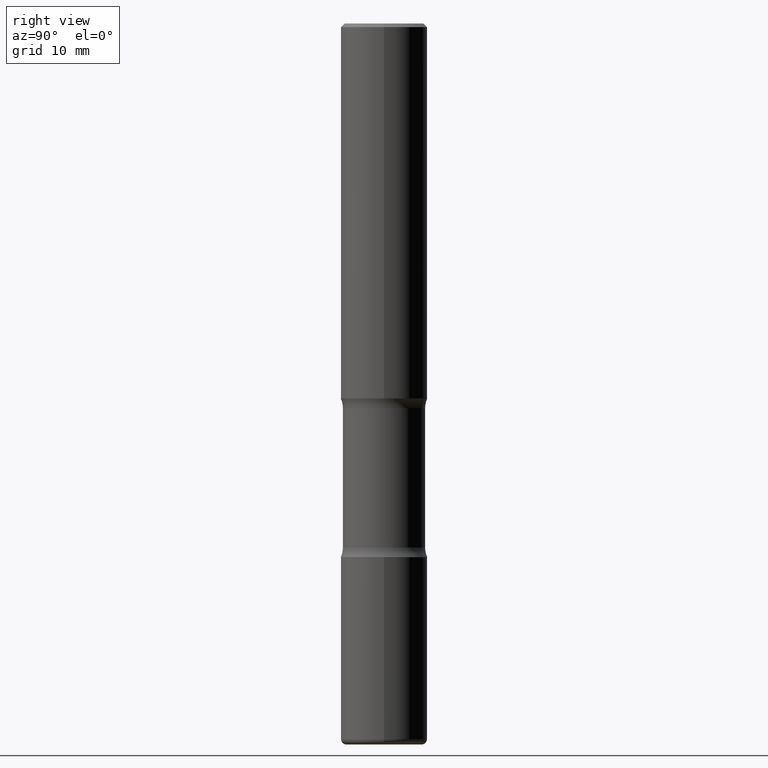
[diagram: clean part render]
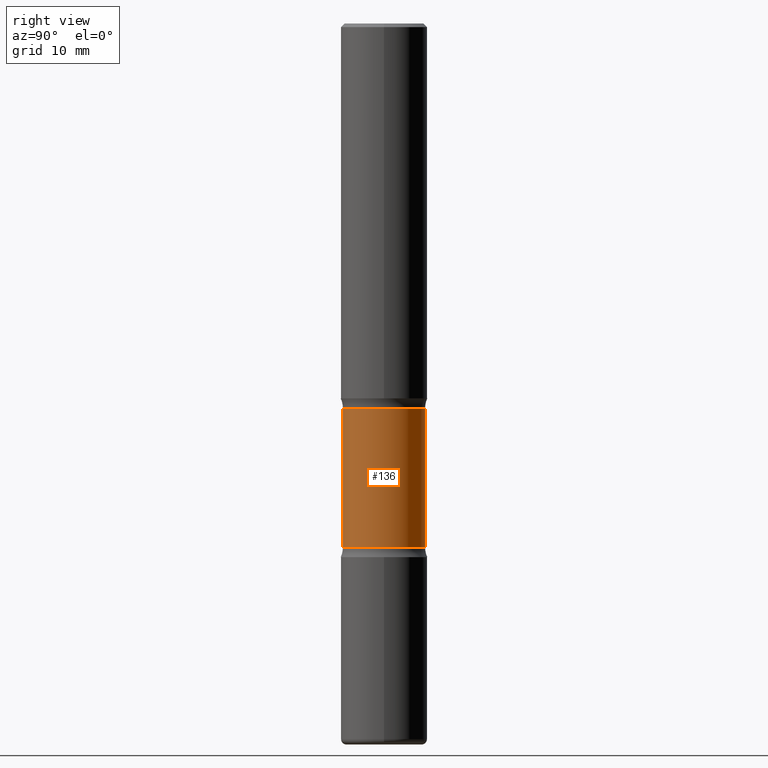
[diagram: same view with one face highlighted and labeled with its STEP entity id]
A machine part, right view. The second image highlights one B-rep face of the part: STEP entity #136.
In plain terms, the highlighted cylindrical surface (partial cylindrical patch) has radius 5.6998 mm, axis along (0, -0, -1).
Its self-contained STEP definition (entity closure, byte-faithful):
#26 = FACE_OUTER_BOUND ( 'NONE', #48, .T. ) ;
#35 = CARTESIAN_POINT ( 'NONE',  ( 1.566976824872848494E-15, 0.2243999999999925499, -2.100216601173596320 ) ) ;
#42 = DIRECTION ( 'NONE',  ( 6.982962677686265922E-15, 1.000000000000000000, -3.652203200085913934E-15 ) ) ;
#48 = EDGE_LOOP ( 'NONE', ( #176, #343, #402, #52 ) ) ;
#52 = ORIENTED_EDGE ( 'NONE', *, *, #82, .F. ) ;
#78 = DIRECTION ( 'NONE',  ( 2.525985086076564115E-29, -3.376177443336566513E-15, -1.000000000000000000 ) ) ;
#82 = EDGE_CURVE ( 'NONE', #317, #536, #149, .T. ) ;
#98 = DIRECTION ( 'NONE',  ( 2.525985086076564115E-29, -3.376177443336566513E-15, -1.000000000000000000 ) ) ;
#105 = CARTESIAN_POINT ( 'NONE',  ( -1.579972688886713168E-15, -0.2244000000000099804, -2.860383398826404466 ) ) ;
#107 = CARTESIAN_POINT ( 'NONE',  ( 1.566976824872894642E-15, 0.2243999999999863049, -3.937000000000000721 ) ) ;
#136 = ADVANCED_FACE ( 'NONE', ( #26 ), #192, .T. ) ;
#149 = LINE ( 'NONE', #107, #197 ) ;
#150 = CARTESIAN_POINT ( 'NONE',  ( 1.566976824872867821E-15, 0.2243999999999899686, -2.860383398826405799 ) ) ;
#160 = CARTESIAN_POINT ( 'NONE',  ( -1.579972688886734072E-15, -0.2244000000000073713, -2.100216601173594544 ) ) ;
#162 = EDGE_CURVE ( 'NONE', #317, #228, #347, .T. ) ;
#176 = ORIENTED_EDGE ( 'NONE', *, *, #162, .T. ) ;
#179 = AXIS2_PLACEMENT_3D ( 'NONE', #231, #284, #456 ) ;
#192 = CYLINDRICAL_SURFACE ( 'NONE', #179, 0.2243999999999999329 ) ;
#197 = VECTOR ( 'NONE', #496, 39.37007874015748143 ) ;
#228 = VERTEX_POINT ( 'NONE', #160 ) ;
#231 = CARTESIAN_POINT ( 'NONE',  ( 9.710227154047748282E-29, -1.362793696358492956E-14, -3.937000000000000277 ) ) ;
#284 = DIRECTION ( 'NONE',  ( 2.525985086076564115E-29, -3.376177443336566513E-15, -1.000000000000000000 ) ) ;
#289 = CARTESIAN_POINT ( 'NONE',  ( -1.539495750699834052E-15, -0.2244000000000135608, -3.936999999999999389 ) ) ;
#308 = EDGE_CURVE ( 'NONE', #228, #352, #523, .T. ) ;
#310 = VECTOR ( 'NONE', #462, 39.37007874015748143 ) ;
#311 = CIRCLE ( 'NONE', #446, 0.2243999999999999606 ) ;
#317 = VERTEX_POINT ( 'NONE', #35 ) ;
#335 = CARTESIAN_POINT ( 'NONE',  ( 5.070539682259229331E-29, -7.426630284172150130E-15, -2.100216601173595432 ) ) ;
#343 = ORIENTED_EDGE ( 'NONE', *, *, #308, .T. ) ;
#347 = CIRCLE ( 'NONE', #436, 0.2243999999999999606 ) ;
#352 = VERTEX_POINT ( 'NONE', #105 ) ;
#366 = DIRECTION ( 'NONE',  ( 6.982962677686265922E-15, 1.000000000000000000, -2.434802133390609421E-15 ) ) ;
#390 = EDGE_CURVE ( 'NONE', #536, #352, #311, .T. ) ;
#401 = CARTESIAN_POINT ( 'NONE',  ( 6.990709676060807691E-29, -9.993088279580958225E-15, -2.860383398826405354 ) ) ;
#402 = ORIENTED_EDGE ( 'NONE', *, *, #390, .F. ) ;
#436 = AXIS2_PLACEMENT_3D ( 'NONE', #335, #78, #42 ) ;
#446 = AXIS2_PLACEMENT_3D ( 'NONE', #401, #98, #366 ) ;
#456 = DIRECTION ( 'NONE',  ( 6.982962677686265922E-15, 1.000000000000000000, -2.434802133390609815E-15 ) ) ;
#462 = DIRECTION ( 'NONE',  ( 2.525985086076564115E-29, -3.376177443336566513E-15, -1.000000000000000000 ) ) ;
#496 = DIRECTION ( 'NONE',  ( 2.525985086076564115E-29, -3.376177443336566513E-15, -1.000000000000000000 ) ) ;
#523 = LINE ( 'NONE', #289, #310 ) ;
#536 = VERTEX_POINT ( 'NONE', #150 ) ;